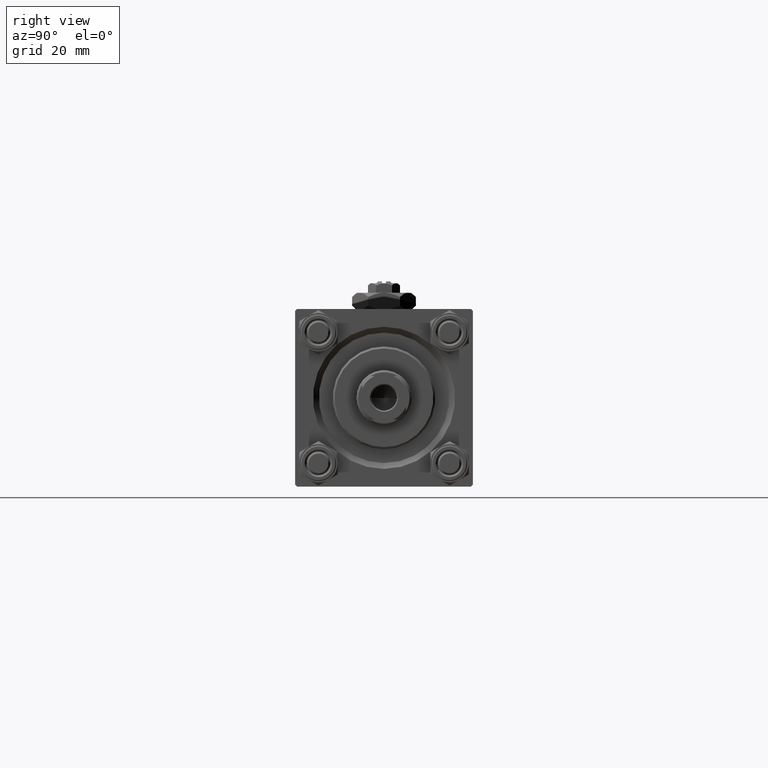
[diagram: clean part render]
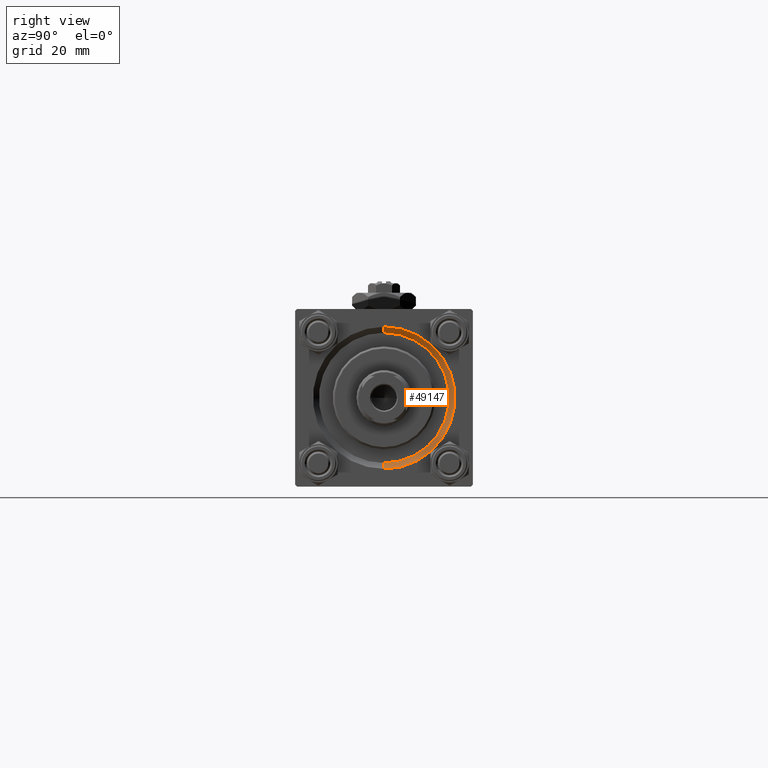
[diagram: same view with one face highlighted and labeled with its STEP entity id]
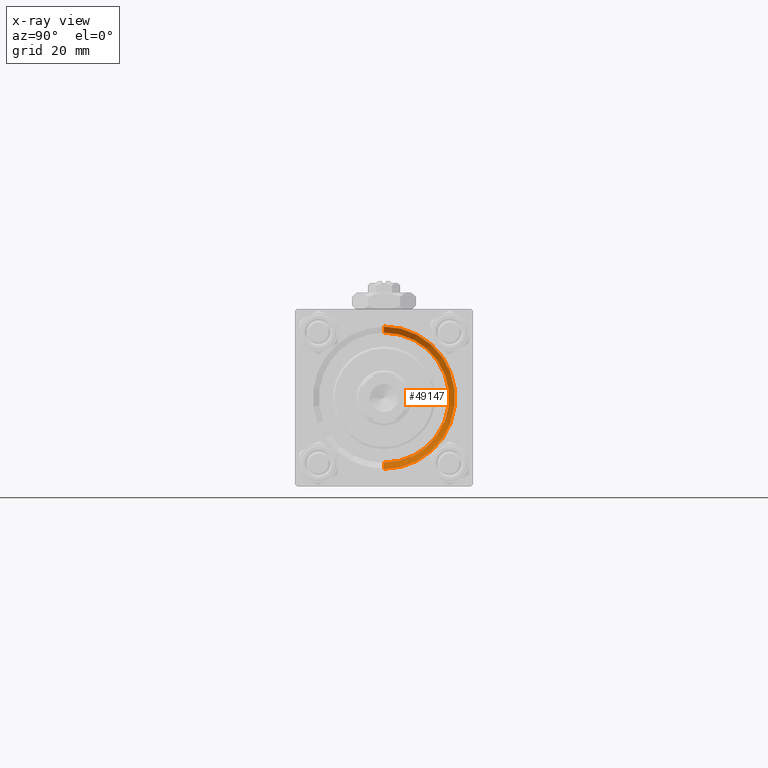
[diagram: x-ray of the same camera — body ghosted, the highlighted face saturated]
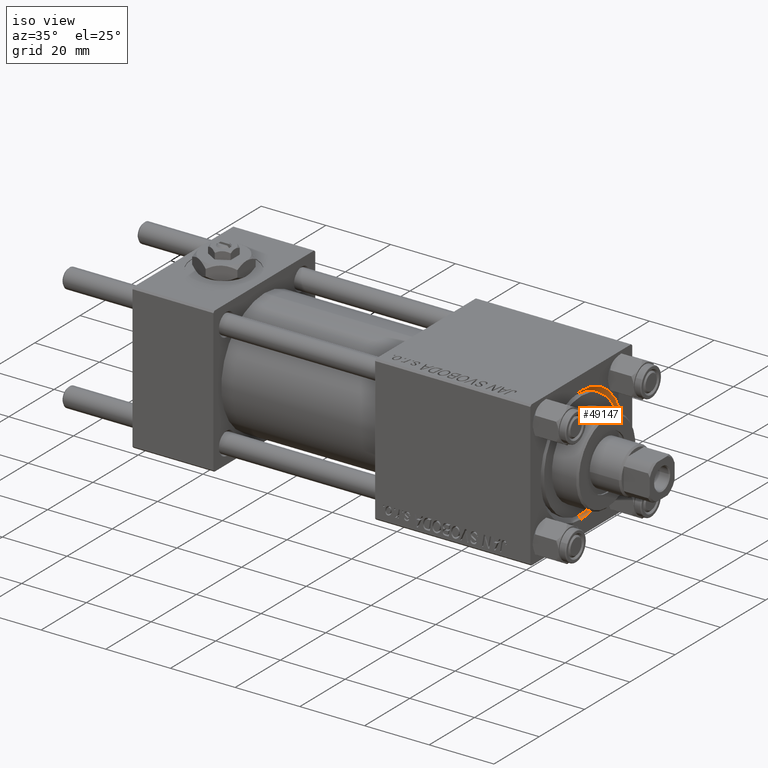
[diagram: same view with one face highlighted and labeled with its STEP entity id]
A machine part, right view. The second image highlights one B-rep face of the part: STEP entity #49147.
The next image is the same camera in x-ray: the body ghosted, the highlighted face saturated — about 0% of this face is hidden behind the body in this view.
A second angle (iso view) of the same face is appended — the face is thin or edge-on in the first view.
In plain terms, the highlighted conical surface has half-angle 45 deg.
Its self-contained STEP definition (entity closure, byte-faithful):
#118 = VERTEX_POINT ( 'NONE', #16612 ) ;
#613 = DIRECTION ( 'NONE',  ( 0.000000000000000000, 0.000000000000000000, 1.000000000000000000 ) ) ;
#1294 = VECTOR ( 'NONE', #22996, 1000.000000000000114 ) ;
#3028 = CARTESIAN_POINT ( 'NONE',  ( 123.0000000000000142, 0.000000000000000000, -18.00000000000000355 ) ) ;
#3845 = DIRECTION ( 'NONE',  ( 0.7071067811865474617, 8.659560562354932858E-17, 0.7071067811865474617 ) ) ;
#3881 = CARTESIAN_POINT ( 'NONE',  ( 121.5000000000000142, 2.020667218593133100E-15, 16.50000000000000000 ) ) ;
#8573 = DIRECTION ( 'NONE',  ( 1.000000000000000000, 0.000000000000000000, 0.000000000000000000 ) ) ;
#8902 = CIRCLE ( 'NONE', #51412, 16.50000000000000000 ) ;
#9098 = VERTEX_POINT ( 'NONE', #3028 ) ;
#9200 = DIRECTION ( 'NONE',  ( -1.000000000000000000, 0.000000000000000000, -0.000000000000000000 ) ) ;
#10402 = EDGE_CURVE ( 'NONE', #118, #9098, #11996, .T. ) ;
#11996 = CIRCLE ( 'NONE', #48631, 18.00000000000000355 ) ;
#13250 = CARTESIAN_POINT ( 'NONE',  ( 121.5000000000000142, 0.000000000000000000, 0.000000000000000000 ) ) ;
#13851 = EDGE_CURVE ( 'NONE', #14143, #9098, #50655, .T. ) ;
#14143 = VERTEX_POINT ( 'NONE', #30939 ) ;
#15160 = CARTESIAN_POINT ( 'NONE',  ( 121.5000000000000142, 0.000000000000000000, -16.50000000000000000 ) ) ;
#15359 = DIRECTION ( 'NONE',  ( 0.000000000000000000, 0.000000000000000000, -1.000000000000000000 ) ) ;
#16612 = CARTESIAN_POINT ( 'NONE',  ( 123.0000000000000142, 2.204364238465235822E-15, 18.00000000000000355 ) ) ;
#19271 = CARTESIAN_POINT ( 'NONE',  ( 121.5000000000000142, 0.000000000000000000, 0.000000000000000000 ) ) ;
#20524 = CONICAL_SURFACE ( 'NONE', #28051, 16.50000000000000000, 0.7853981633974482790 ) ;
#21466 = ORIENTED_EDGE ( 'NONE', *, *, #47005, .F. ) ;
#22148 = VECTOR ( 'NONE', #3845, 1000.000000000000114 ) ;
#22996 = DIRECTION ( 'NONE',  ( 0.7071067811865474617, 0.000000000000000000, -0.7071067811865474617 ) ) ;
#26847 = DIRECTION ( 'NONE',  ( 1.000000000000000000, 0.000000000000000000, 0.000000000000000000 ) ) ;
#28051 = AXIS2_PLACEMENT_3D ( 'NONE', #19271, #26847, #15359 ) ;
#28401 = DIRECTION ( 'NONE',  ( 0.000000000000000000, 0.000000000000000000, 1.000000000000000000 ) ) ;
#28440 = ORIENTED_EDGE ( 'NONE', *, *, #10402, .F. ) ;
#30853 = VERTEX_POINT ( 'NONE', #3881 ) ;
#30939 = CARTESIAN_POINT ( 'NONE',  ( 121.5000000000000142, 0.000000000000000000, -16.50000000000000000 ) ) ;
#34227 = ORIENTED_EDGE ( 'NONE', *, *, #13851, .T. ) ;
#35419 = LINE ( 'NONE', #39075, #22148 ) ;
#35448 = FACE_OUTER_BOUND ( 'NONE', #42336, .T. ) ;
#39075 = CARTESIAN_POINT ( 'NONE',  ( 121.5000000000000142, 2.020667218593133100E-15, 16.50000000000000000 ) ) ;
#40517 = CARTESIAN_POINT ( 'NONE',  ( 123.0000000000000142, 0.000000000000000000, 0.000000000000000000 ) ) ;
#40729 = ORIENTED_EDGE ( 'NONE', *, *, #50344, .F. ) ;
#42336 = EDGE_LOOP ( 'NONE', ( #21466, #40729, #34227, #28440 ) ) ;
#47005 = EDGE_CURVE ( 'NONE', #30853, #118, #35419, .T. ) ;
#48631 = AXIS2_PLACEMENT_3D ( 'NONE', #40517, #9200, #613 ) ;
#49147 = ADVANCED_FACE ( 'NONE', ( #35448 ), #20524, .F. ) ;
#50344 = EDGE_CURVE ( 'NONE', #14143, #30853, #8902, .T. ) ;
#50655 = LINE ( 'NONE', #15160, #1294 ) ;
#51412 = AXIS2_PLACEMENT_3D ( 'NONE', #13250, #8573, #28401 ) ;